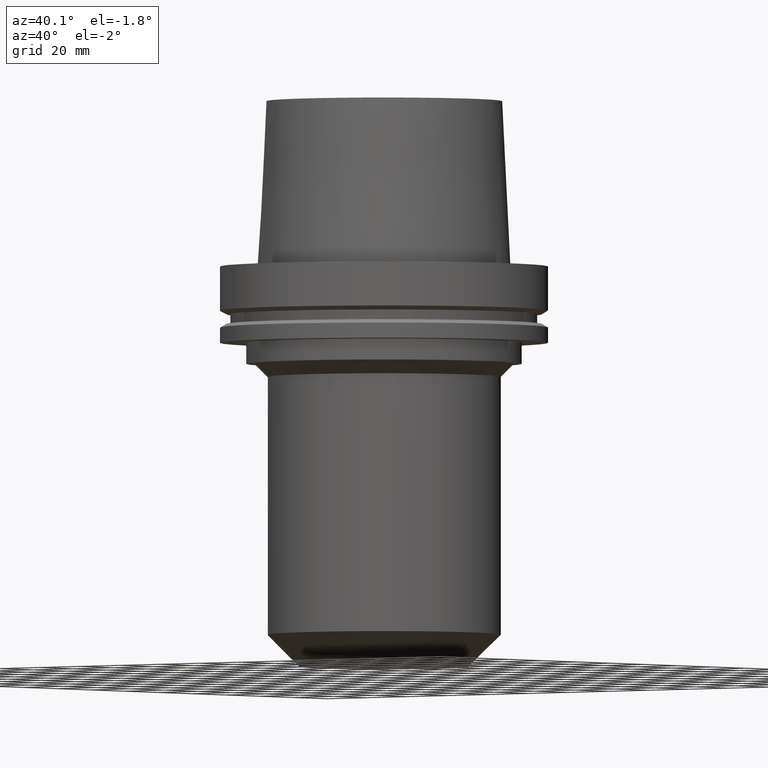
[diagram: clean part render]
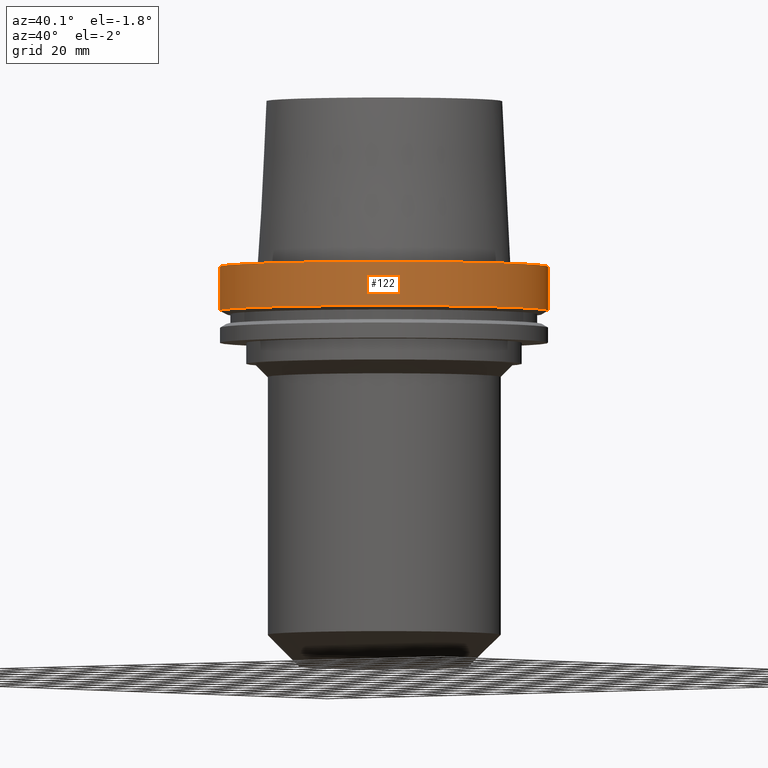
[diagram: same view with one face highlighted and labeled with its STEP entity id]
A machine part, auxiliary view. The second image highlights one B-rep face of the part: STEP entity #122.
In plain terms, the highlighted cylindrical surface (bore or boss wall) has radius 62.5 mm, axis along (0, 0, -1).
Its self-contained STEP definition (entity closure, byte-faithful):
#65=EDGE_CURVE('Unnamed[1]',#169,#169,#170,.T.);
#122=ADVANCED_FACE('Unnamed[1]',(#258,#259),#260,.T.);
#130=EDGE_CURVE('Unnamed[1]',#271,#271,#272,.T.);
#169=VERTEX_POINT('',#312);
#170=CIRCLE('',#313,62.5);
#258=FACE_BOUND('',#423,.T.);
#259=FACE_BOUND('',#424,.T.);
#260=CYLINDRICAL_SURFACE('',#425,62.5000000000001);
#271=VERTEX_POINT('',#440);
#272=CIRCLE('',#441,62.5000000000002);
#312=CARTESIAN_POINT('',(1.02578894188644E-015,62.5,-16.7524047358084));
#313=AXIS2_PLACEMENT_3D('',#474,#475,#476);
#423=EDGE_LOOP('',(#575));
#424=EDGE_LOOP('',(#576));
#425=AXIS2_PLACEMENT_3D('',#577,#578,#579);
#440=CARTESIAN_POINT('',(-5.58935713239973E-030,62.5000000000002,8.63540424946709E-014));
#441=AXIS2_PLACEMENT_3D('',#589,#590,#591);
#474=CARTESIAN_POINT('',(1.02578894188644E-015,2.05157788377287E-015,-16.7524047358084));
#475=DIRECTION('',(6.12323399573676E-017,1.22464679914723E-016,-1.0));
#476=DIRECTION('',(-1.23259516440783E-032,1.0,1.22464679914723E-016));
#575=ORIENTED_EDGE('',*,*,#65,.F.);
#576=ORIENTED_EDGE('',*,*,#130,.T.);
#577=CARTESIAN_POINT('',(5.12894470943216E-016,1.02578894188643E-015,-8.37620236790417));
#578=DIRECTION('',(6.12323399573677E-017,1.22464679914723E-016,-1.0));
#579=DIRECTION('',(-1.23259516440783E-032,1.0,1.22464679914723E-016));
#589=CARTESIAN_POINT('',(-5.22098332203606E-030,-1.04419666440721E-029,8.5265128291212E-014));
#590=DIRECTION('',(6.12323399573677E-017,1.22464679914723E-016,-1.0));
#591=DIRECTION('',(-1.23259516440783E-032,1.0,1.22464679914723E-016));